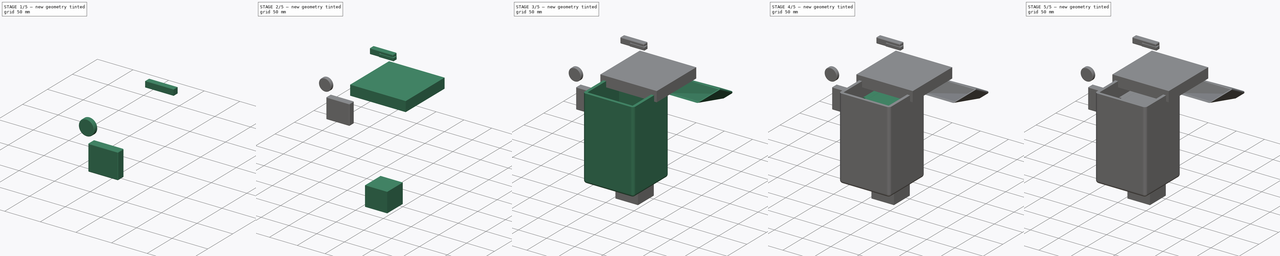
[diagram: build sequence overview — one tinted view per stage of 5, left to right]
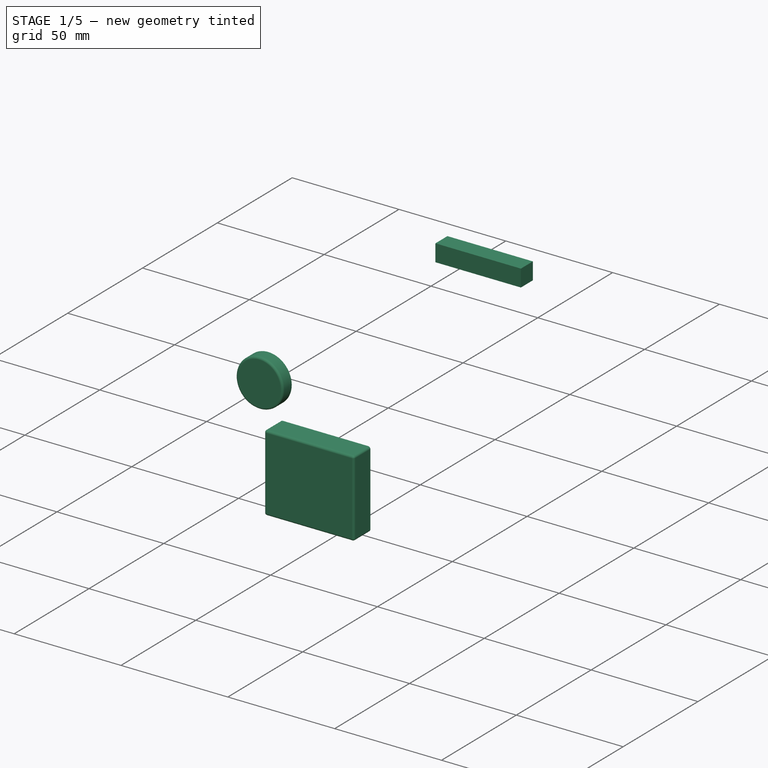
[diagram: stage 1 of 5 — iso view after this stage's code; geometry added in this stage tinted green]
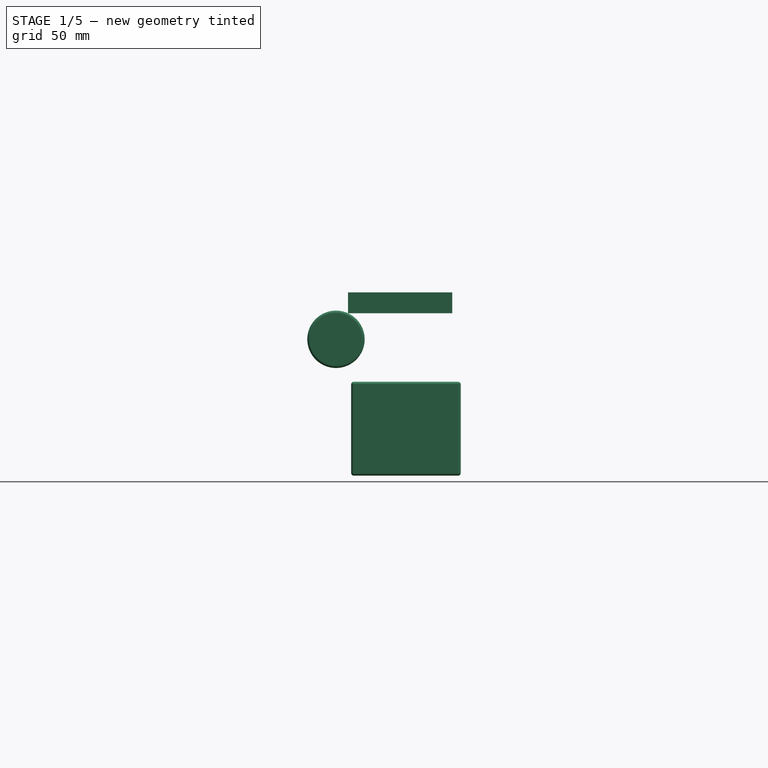
[diagram: stage 1 of 5 — front view after this stage's code; geometry added in this stage tinted green]
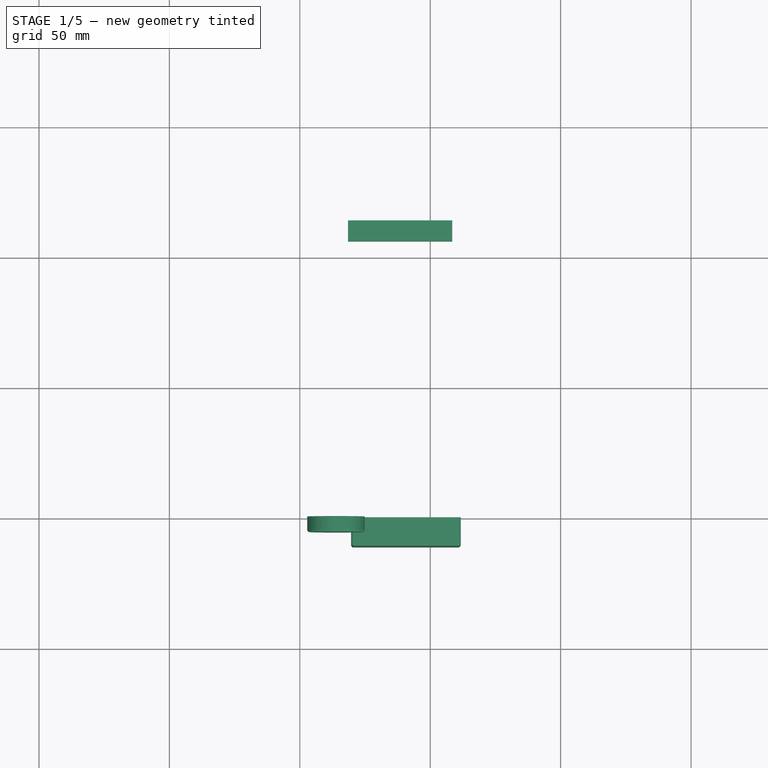
[diagram: stage 1 of 5 — top view after this stage's code; geometry added in this stage tinted green]
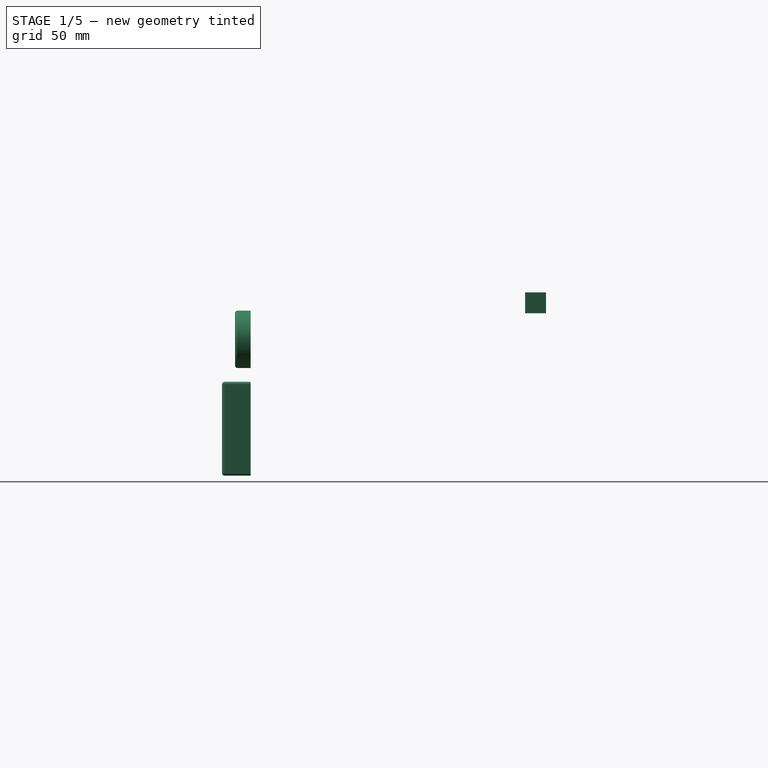
[diagram: stage 1 of 5 — right view after this stage's code; geometry added in this stage tinted green]
FCSTD DOCUMENT  (FreeCAD 0.19R24291 (Git))
Label: โครงเรื่อง3
License: All rights reserved
LicenseURL: http://en.wikipedia.org/wiki/All_rights_reserved
objects: Sketcher::SketchObject×14, PartDesign::Body×13, PartDesign::Pad×12, PartDesign::Thickness×7, PartDesign::Hole×3, PartDesign::Draft×1, PartDesign::AdditiveLoft×1, PartDesign::Pocket×1
note: 77 computed .brp shape members not serialized (recipe doc carries the construction recipe); baked Part::Feature solids carry a one-line shape summary decoded from their .brp

FEATURE [PartDesign::Body] Body009  label="ฐาน"
  Group = -> [Sketch010,Pad008]
  Origin = -> Origin009
  Placement = pos=(0,0,-166) rot=(0,0,1;0rad)
  Tip = -> Pad008
FEATURE [Sketcher::SketchObject] Sketch011
  FullyConstrained = false
  MapMode = 5
  Support = -> [XY_Plane010]
  sketch-geometry (4):
    g0: LineSegment StartX=-131.543 StartY=113.223 StartZ=0 EndX=-91.5434 EndY=113.223 EndZ=0
    g1: LineSegment StartX=-91.5434 StartY=113.223 StartZ=0 EndX=-91.5434 EndY=105.223 EndZ=0
    g2: LineSegment StartX=-91.5434 StartY=105.223 StartZ=0 EndX=-131.543 EndY=105.223 EndZ=0
    g3: LineSegment StartX=-131.543 StartY=105.223 StartZ=0 EndX=-131.543 EndY=113.223 EndZ=0
  constraints (10):
    c: Coincident(g0,g1)
    c: Coincident(g1,g2)
    c: Coincident(g2,g3)
    c: Coincident(g3,g0)
    c: Horizontal(g0)
    c: Horizontal(g2)
    c: Vertical(g1)
    c: Vertical(g3)
    c: DistanceY(g3,g3) = 8
    c: DistanceX(g0,g0) = 40
FEATURE [PartDesign::Pad] Pad009
  Direction = (1,1,1)
  Length = 8
  Length2 = 100
  Profile = -> Sketch011
  Type = 0
FEATURE [PartDesign::Body] Body010  label="LCD"
  Group = -> [Sketch011,Pad009,Thickness004]
  Origin = -> Origin010
  Placement = pos=(88,-49,0) rot=(0,0,1;0rad)
  Tip = -> Thickness004
FEATURE [Sketcher::SketchObject] Sketch012
  FullyConstrained = false
  MapMode = 5
  Placement = pos=(0,0,0) rot=(1,0,0;1.5708rad)
  Support = -> [XZ_Plane011]
  sketch-geometry (1):
    g0: Circle CenterX=-136.135 CenterY=-10 CenterZ=0 NormalX=0 NormalY=0 NormalZ=1 AngleXU=0 Radius=10
  constraints (1):
    c: Radius(g0) = 10
FEATURE [PartDesign::Pad] Pad010
  Direction = (1,1,1)
  Length = 5
  Length2 = 100
  Placement = pos=(0,0,0) rot=(1,0,0;1.5708rad)
  Profile = -> Sketch012
  Type = 0
FEATURE [PartDesign::Thickness] Thickness005
  Base = -> Pad010 [Face2]
  BaseFeature = -> Pad010
  Intersection = false
  Join = 0
  Mode = 0
  SupportTransform = false
  Value = 1
FEATURE [PartDesign::Body] Body011
  Group = -> [Sketch012,Pad010,Thickness005]
  Origin = -> Origin011
  Placement = pos=(112,62,-3) rot=(0,0,1;0rad)
  Tip = -> Thickness005
FEATURE [Sketcher::SketchObject] Sketch013
  FullyConstrained = false
  MapMode = 5
  Placement = pos=(0,0,0) rot=(1,0,0;1.5708rad)
  Support = -> [XZ_Plane012]
  sketch-geometry (4):
    g0: LineSegment StartX=-129.317 StartY=-27.2861 StartZ=0 EndX=-89.3169 EndY=-27.2861 EndZ=0
    g1: LineSegment StartX=-89.3169 StartY=-27.2861 StartZ=0 EndX=-89.3169 EndY=-61.2861 EndZ=0
    g2: LineSegment StartX=-89.3169 StartY=-61.2861 StartZ=0 EndX=-129.317 EndY=-61.2861 EndZ=0
    g3: LineSegment StartX=-129.317 StartY=-61.2861 StartZ=0 EndX=-129.317 EndY=-27.2861 EndZ=0
  constraints (10):
    c: Coincident(g0,g1)
    c: Coincident(g1,g2)
    c: Coincident(g2,g3)
    c: Coincident(g3,g0)
    c: Horizontal(g0)
    c: Horizontal(g2)
    c: Vertical(g1)
    c: Vertical(g3)
    c: DistanceY(g3,g3) = 34
    c: DistanceX(g0,g0) = 40
FEATURE [PartDesign::Pad] Pad011
  Direction = (1,1,1)
  Length = 10
  Length2 = 100
  Placement = pos=(0,0,0) rot=(1,0,0;1.5708rad)
  Profile = -> Sketch013
  Type = 0
FEATURE [PartDesign::Thickness] Thickness006
  Base = -> Pad011 [Face5]
  BaseFeature = -> Pad011
  Intersection = false
  Join = 0
  Mode = 0
  SupportTransform = false
  Value = 1
FEATURE [PartDesign::Body] Body012
  Group = -> [Sketch013,Pad011,Thickness006]
  Origin = -> Origin012
  Placement = pos=(85,66,1) rot=(0,0,1;0rad)
  Tip = -> Thickness006
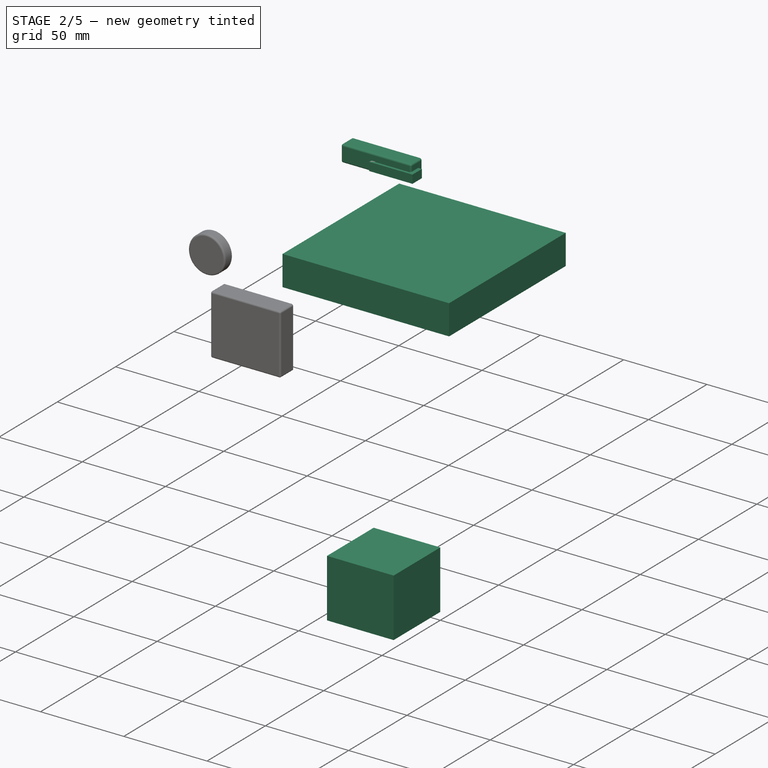
[diagram: stage 2 of 5 — iso view after this stage's code; geometry added in this stage tinted green]
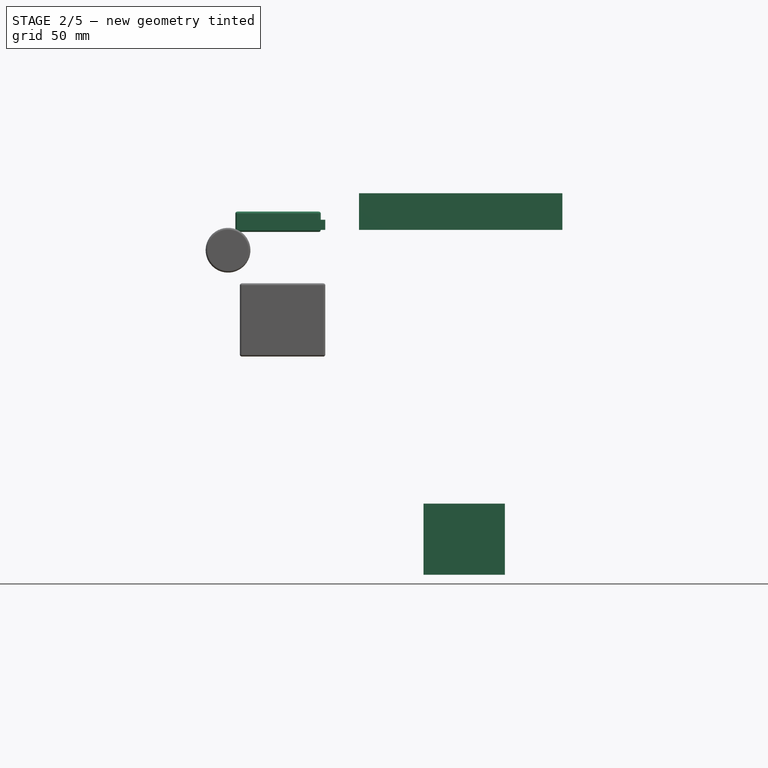
[diagram: stage 2 of 5 — front view after this stage's code; geometry added in this stage tinted green]
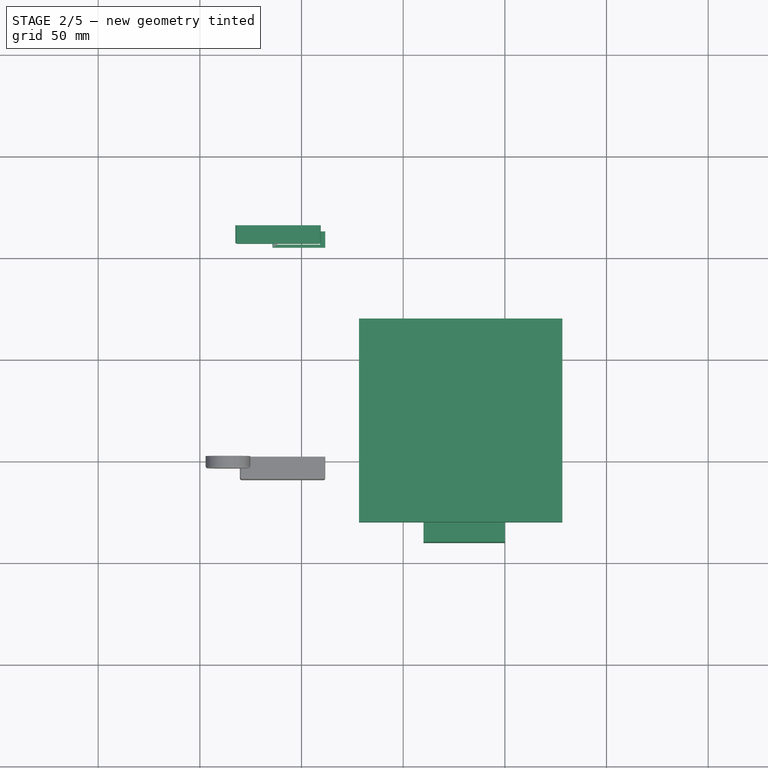
[diagram: stage 2 of 5 — top view after this stage's code; geometry added in this stage tinted green]
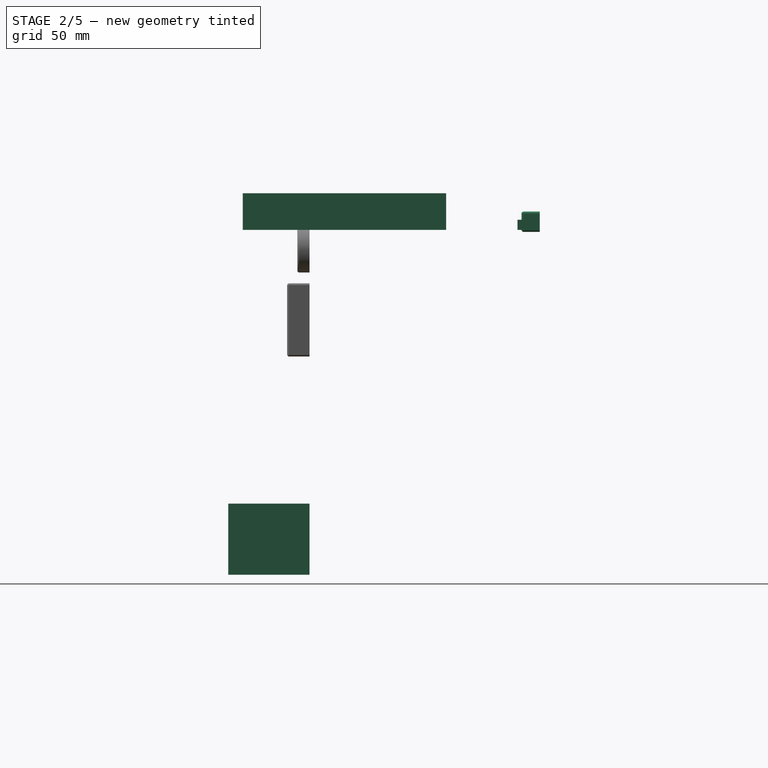
[diagram: stage 2 of 5 — right view after this stage's code; geometry added in this stage tinted green]
FEATURE [PartDesign::Body] Body006  label="กรอบ"
  Group = -> [Sketch007,Pad005,Thickness003]
  Origin = -> Origin006
  Placement = pos=(0,56,4) rot=(0,0,1;0rad)
  Tip = -> Thickness003
FEATURE [Sketcher::SketchObject] Sketch008
  FullyConstrained = false
  MapMode = 5
  Support = -> [XY_Plane007]
  sketch-geometry (8):
    g0: LineSegment StartX=-114.313 StartY=110.283 StartZ=0 EndX=-88.3133 EndY=110.283 EndZ=0
    g1: LineSegment StartX=-88.3133 StartY=110.283 StartZ=0 EndX=-88.3133 EndY=102.283 EndZ=0
    g2: LineSegment StartX=-88.3133 StartY=102.283 StartZ=0 EndX=-114.313 EndY=102.283 EndZ=0
    g3: LineSegment StartX=-114.313 StartY=102.283 StartZ=0 EndX=-114.313 EndY=110.283 EndZ=0
    g4: LineSegment StartX=-110.919 StartY=108.757 StartZ=0 EndX=-90.9192 EndY=108.757 EndZ=0
    g5: LineSegment StartX=-90.9192 StartY=108.757 StartZ=0 EndX=-90.9192 EndY=103.757 EndZ=0
    g6: LineSegment StartX=-90.9192 StartY=103.757 StartZ=0 EndX=-110.919 EndY=103.757 EndZ=0
    g7: LineSegment StartX=-110.919 StartY=103.757 StartZ=0 EndX=-110.919 EndY=108.757 EndZ=0
  constraints (20):
    c: Coincident(g0,g1)
    c: Coincident(g1,g2)
    c: Coincident(g2,g3)
    c: Coincident(g3,g0)
    c: Horizontal(g0)
    c: Horizontal(g2)
    c: Vertical(g1)
    c: Vertical(g3)
    c: DistanceX(g0,g0) = 26
    c: DistanceY(g3,g3) = 8
    c: Coincident(g4,g5)
    c: Coincident(g5,g6)
    c: Coincident(g6,g7)
    c: Coincident(g7,g4)
    c: Horizontal(g4)
    c: Horizontal(g6)
    c: Vertical(g5)
    c: Vertical(g7)
    c: DistanceY(g7,g7) = 5
    c: DistanceX(g4,g4) = 20
FEATURE [PartDesign::Pad] Pad006
  Direction = (1,1,1)
  Length = 5
  Length2 = 100
  Profile = -> Sketch008
  Type = 0
FEATURE [PartDesign::Pocket] Pocket
  BaseFeature = -> Pad006
  Length = 1
  Length2 = 100
  Profile = -> Pad006 [Face5]
  Type = 0
FEATURE [PartDesign::Body] Body007  label="ให้สายออกมา"
  Group = -> [Sketch008,Pad006,Pocket]
  Origin = -> Origin007
  Placement = pos=(78,-143,-97) rot=(0,0,1;0rad)
  Tip = -> Pocket
FEATURE [Sketcher::SketchObject] Sketch009
  FullyConstrained = false
  MapMode = 5
  Placement = pos=(0,0,0) rot=(1,0,0;1.5708rad)
  Support = -> [XZ_Plane008]
  sketch-geometry (4):
    g0: LineSegment StartX=-40 StartY=-134.61 StartZ=0 EndX=0 EndY=-134.61 EndZ=0
    g1: LineSegment StartX=0 StartY=-134.61 StartZ=0 EndX=0 EndY=-169.61 EndZ=0
    g2: LineSegment StartX=0 StartY=-169.61 StartZ=0 EndX=-40 EndY=-169.61 EndZ=0
    g3: LineSegment StartX=-40 StartY=-169.61 StartZ=0 EndX=-40 EndY=-134.61 EndZ=0
  constraints (10):
    c: Coincident(g0,g1)
    c: Coincident(g1,g2)
    c: Coincident(g2,g3)
    c: Coincident(g3,g0)
    c: Horizontal(g0)
    c: Horizontal(g2)
    c: Vertical(g1)
    c: Vertical(g3)
    c: DistanceY(g3,g3) = 35
    c: DistanceX(g2,g2) = 40
FEATURE [PartDesign::Pad] Pad007
  Direction = (1,1,1)
  Length = 40
  Length2 = 100
  Placement = pos=(0,0,0) rot=(1,0,0;1.5708rad)
  Profile = -> Sketch009
  Type = 0
FEATURE [PartDesign::Body] Body008  label="เสาฐาน"
  Group = -> [Sketch009,Pad007]
  Origin = -> Origin008
  Placement = pos=(-2,32,5) rot=(0,0,1;0rad)
  Tip = -> Pad007
FEATURE [Sketcher::SketchObject] Sketch010
  FullyConstrained = false
  MapMode = 5
  Support = -> [XY_Plane009]
  sketch-geometry (4):
    g0: LineSegment StartX=-71.7285 StartY=67.1716 StartZ=0 EndX=28.2715 EndY=67.1716 EndZ=0
    g1: LineSegment StartX=28.2715 StartY=67.1716 StartZ=0 EndX=28.2715 EndY=-32.8284 EndZ=0
    g2: LineSegment StartX=28.2715 StartY=-32.8284 StartZ=0 EndX=-71.7285 EndY=-32.8284 EndZ=0
    g3: LineSegment StartX=-71.7285 StartY=-32.8284 StartZ=0 EndX=-71.7285 EndY=67.1716 EndZ=0
  constraints (10):
    c: Coincident(g0,g1)
    c: Coincident(g1,g2)
    c: Coincident(g2,g3)
    c: Coincident(g3,g0)
    c: Horizontal(g0)
    c: Horizontal(g2)
    c: Vertical(g1)
    c: Vertical(g3)
    c: DistanceY(g3,g3) = 100
    c: DistanceX(g0,g0) = 100
FEATURE [PartDesign::Pad] Pad008
  Direction = (1,1,1)
  Length = 18
  Length2 = 100
  Profile = -> Sketch010
  Type = 0
FEATURE [PartDesign::Thickness] Thickness004
  Base = -> Pad009 [Face1]
  BaseFeature = -> Pad009
  Intersection = false
  Join = 0
  Mode = 0
  SupportTransform = false
  Value = 1
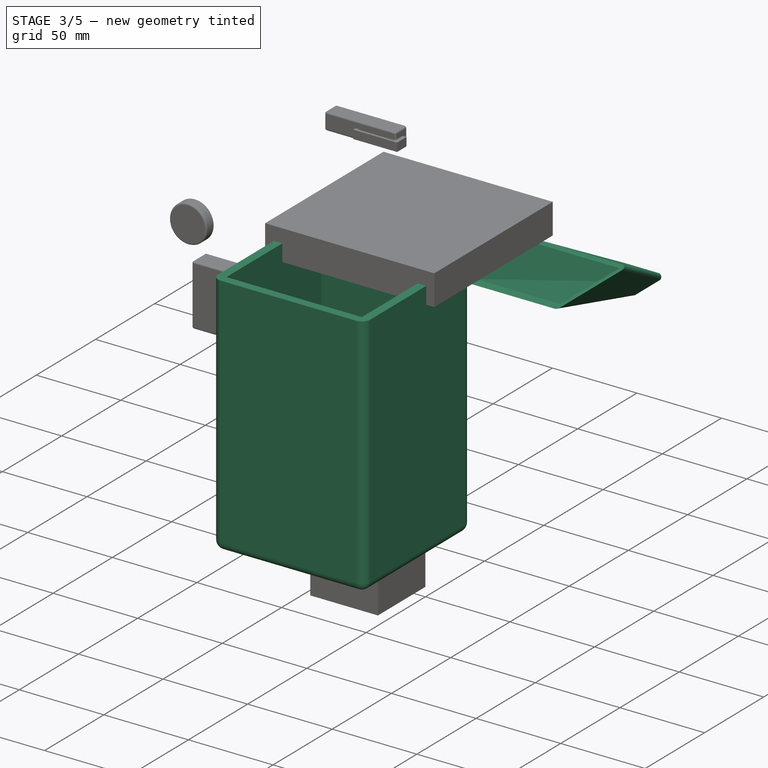
[diagram: stage 3 of 5 — iso view after this stage's code; geometry added in this stage tinted green]
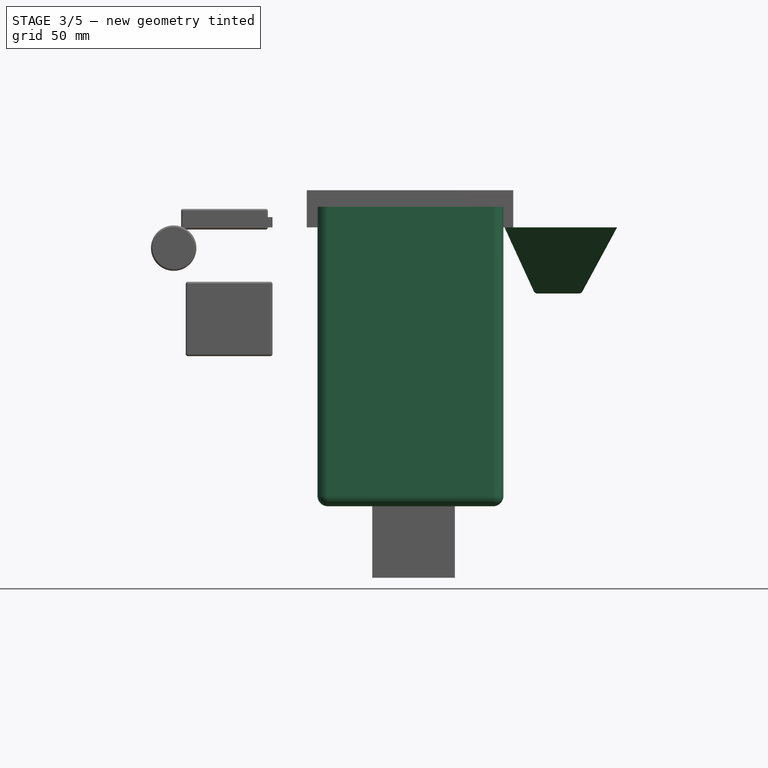
[diagram: stage 3 of 5 — front view after this stage's code; geometry added in this stage tinted green]
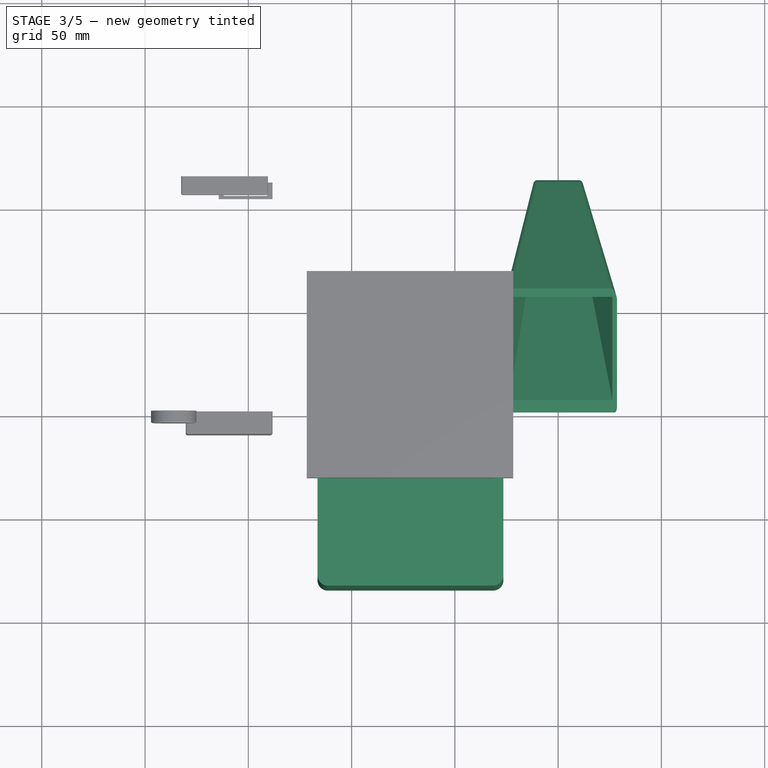
[diagram: stage 3 of 5 — top view after this stage's code; geometry added in this stage tinted green]
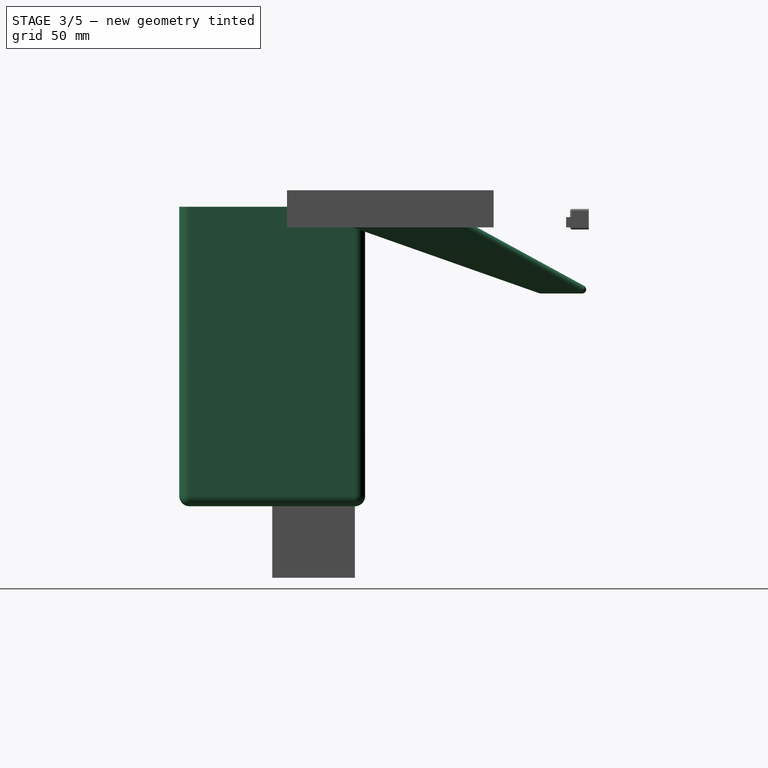
[diagram: stage 3 of 5 — right view after this stage's code; geometry added in this stage tinted green]
FEATURE [PartDesign::Body] Body004  label="ฝาปิด node"
  Group = -> [Sketch004,Pad004]
  Origin = -> Origin004
  Placement = pos=(0,-46,0) rot=(0,0,1;0rad)
  Tip = -> Pad004
FEATURE [Sketcher::SketchObject] Sketch005
  FullyConstrained = false
  MapMode = 5
  Support = -> [XY_Plane005]
  sketch-geometry (4):
    g0: LineSegment StartX=26.2425 StartY=55.0035 StartZ=0 EndX=76.2425 EndY=55.0035 EndZ=0
    g1: LineSegment StartX=76.2425 StartY=55.0035 StartZ=0 EndX=76.2425 EndY=5.00346 EndZ=0
    g2: LineSegment StartX=76.2425 StartY=5.00346 StartZ=0 EndX=26.2425 EndY=5.00346 EndZ=0
    g3: LineSegment StartX=26.2425 StartY=5.00346 StartZ=0 EndX=26.2425 EndY=55.0035 EndZ=0
  constraints (10):
    c: Coincident(g0,g1)
    c: Coincident(g1,g2)
    c: Coincident(g2,g3)
    c: Coincident(g3,g0)
    c: Horizontal(g0)
    c: Horizontal(g2)
    c: Vertical(g1)
    c: Vertical(g3)
    c: DistanceY(g3,g3) = 50
    c: DistanceX(g0,g0) = 50
FEATURE [Sketcher::SketchObject] Sketch006
  AttachmentOffset = pos=(0,20,-30) rot=(0,0,1;0rad)
  FullyConstrained = false
  MapMode = 5
  Placement = pos=(0,20,-30) rot=(0,0,1;0rad)
  Support = -> [XY_Plane005]
  sketch-geometry (5):
    g0: LineSegment StartX=40 StartY=90 StartZ=0 EndX=60 EndY=90 EndZ=0
    g1: LineSegment StartX=60 StartY=90 StartZ=0 EndX=60 EndY=70 EndZ=0
    g2: LineSegment StartX=60 StartY=70 StartZ=0 EndX=40 EndY=70 EndZ=0
    g3: LineSegment StartX=40 StartY=70 StartZ=0 EndX=40 EndY=90 EndZ=0
    g4: Circle CenterX=50 CenterY=80 CenterZ=0 NormalX=0 NormalY=0 NormalZ=1 AngleXU=0 Radius=10
  constraints (11):
    c: Coincident(g0,g1)
    c: Coincident(g1,g2)
    c: Coincident(g2,g3)
    c: Coincident(g3,g0)
    c: Horizontal(g0)
    c: Horizontal(g2)
    c: Vertical(g1)
    c: Vertical(g3)
    c: DistanceY(g3,g3) = 20
    c: DistanceX(g0,g0) = 20
    c: Radius(g4) = 10
FEATURE [PartDesign::AdditiveLoft] AdditiveLoft
  Closed = false
  Profile = -> Sketch005
  Ruled = false
  Sections = -> [Sketch006]
FEATURE [PartDesign::Thickness] Thickness002
  Base = -> AdditiveLoft [Face1]
  BaseFeature = -> AdditiveLoft
  Intersection = false
  Join = 0
  Mode = 0
  SupportTransform = false
  Value = 2
FEATURE [PartDesign::Hole] Hole002
  BaseFeature = -> Thickness002
  Depth = 25
  DepthType = 0
  Diameter = 18
  DrillForDepth = false
  DrillPoint = 1
  DrillPointAngle = 118
  HoleCutCountersinkAngle = 90
  HoleCutCustomValues = false
  HoleCutDepth = 0
  HoleCutDiameter = 6.1
  HoleCutType = 0
  ModelActualThread = false
  Profile = -> Sketch006
  Tapered = false
  TaperedAngle = 90
  ThreadAngle = 0
  ThreadClass = 0
  ThreadCutOffInner = 0
  ThreadCutOffOuter = 0
  ThreadDirection = 0
  ThreadFit = 0
  ThreadPitch = 0
  ThreadSize = 0
  ThreadType = 0
  Threaded = false
FEATURE [PartDesign::Body] Body005  label="ทางเดินอาหาร"
  Group = -> [Sketch005,Sketch006,AdditiveLoft,Thickness002,Hole002]
  Origin = -> Origin005
  Placement = pos=(-75,-7,-57) rot=(0,0,1;0rad)
  Tip = -> Hole002
FEATURE [Sketcher::SketchObject] Sketch007
  FullyConstrained = false
  MapMode = 5
  Placement = pos=(0,0,0) rot=(1,0,0;1.5708rad)
  Support = -> [XZ_Plane006]
  sketch-geometry (4):
    g0: LineSegment StartX=-61.4962 StartY=10 StartZ=0 EndX=18.5038 EndY=10 EndZ=0
    g1: LineSegment StartX=18.5038 StartY=10 StartZ=0 EndX=18.5038 EndY=-130 EndZ=0
    g2: LineSegment StartX=18.5038 StartY=-130 StartZ=0 EndX=-61.4962 EndY=-130 EndZ=0
    g3: LineSegment StartX=-61.4962 StartY=-130 StartZ=0 EndX=-61.4962 EndY=10 EndZ=0
  constraints (10):
    c: Coincident(g0,g1)
    c: Coincident(g1,g2)
    c: Coincident(g2,g3)
    c: Coincident(g3,g0)
    c: Horizontal(g0)
    c: Horizontal(g2)
    c: Vertical(g1)
    c: Vertical(g3)
    c: DistanceX(g2,g2) = 80
    c: DistanceY(g3,g3) = 140
FEATURE [PartDesign::Pad] Pad005
  Direction = (1,1,1)
  Length = 80
  Length2 = 100
  Placement = pos=(0,0,0) rot=(1,0,0;1.5708rad)
  Profile = -> Sketch007
  Type = 0
FEATURE [PartDesign::Thickness] Thickness003
  Base = -> Pad005 [Face1]
  BaseFeature = -> Pad005
  Intersection = false
  Join = 0
  Mode = 0
  SupportTransform = false
  Value = 5
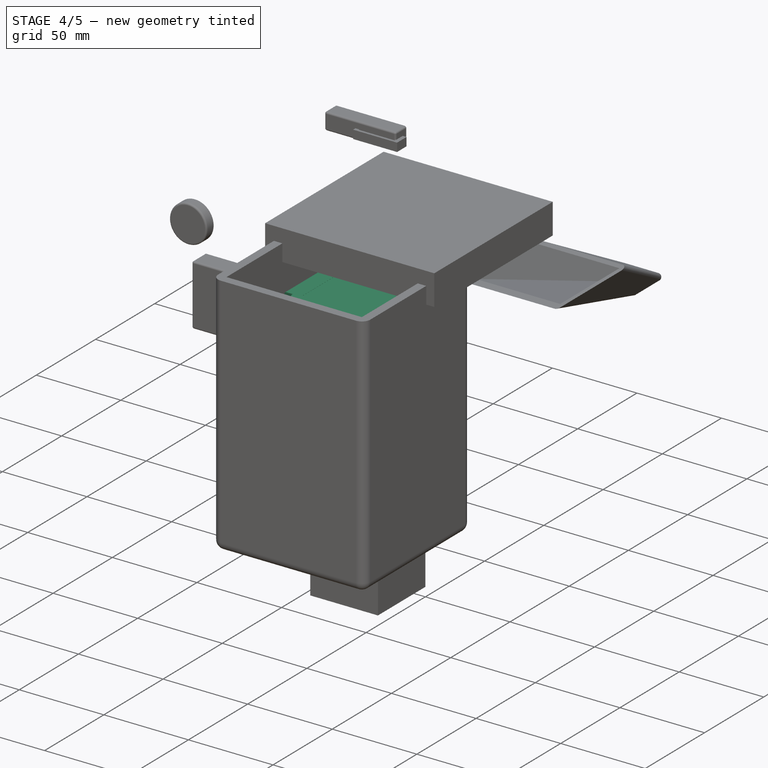
[diagram: stage 4 of 5 — iso view after this stage's code; geometry added in this stage tinted green]
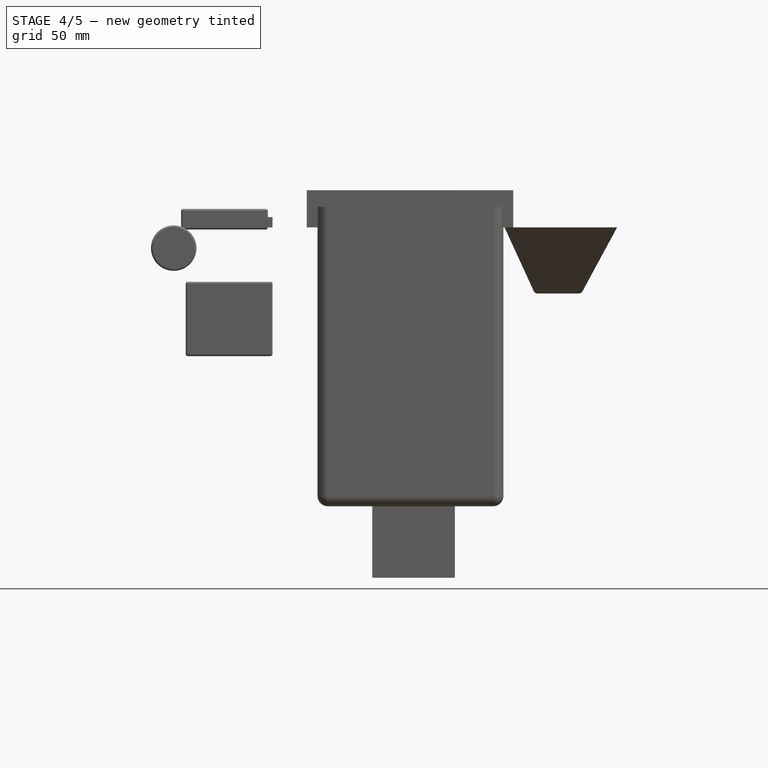
[diagram: stage 4 of 5 — front view after this stage's code; geometry added in this stage tinted green]
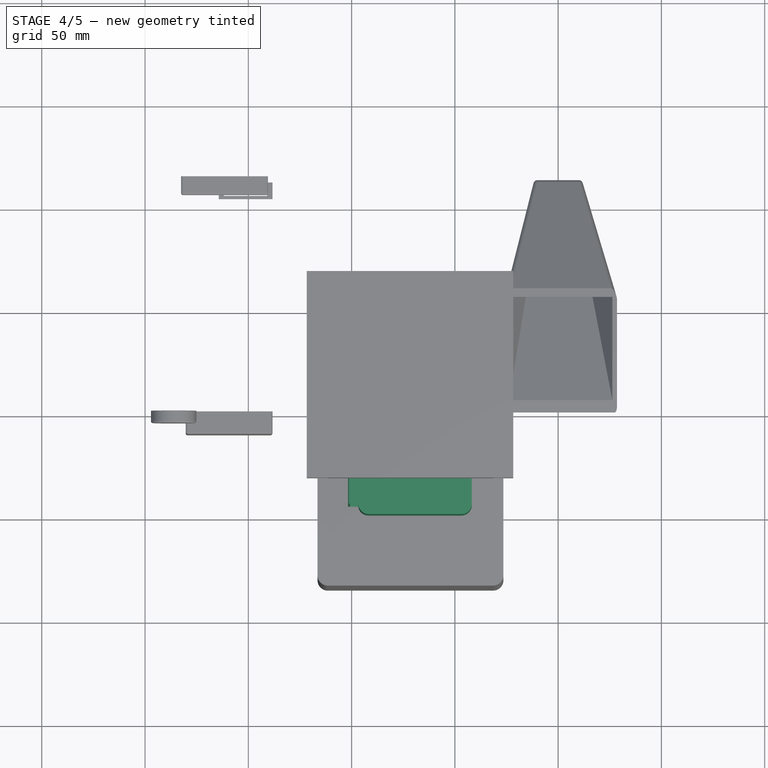
[diagram: stage 4 of 5 — top view after this stage's code; geometry added in this stage tinted green]
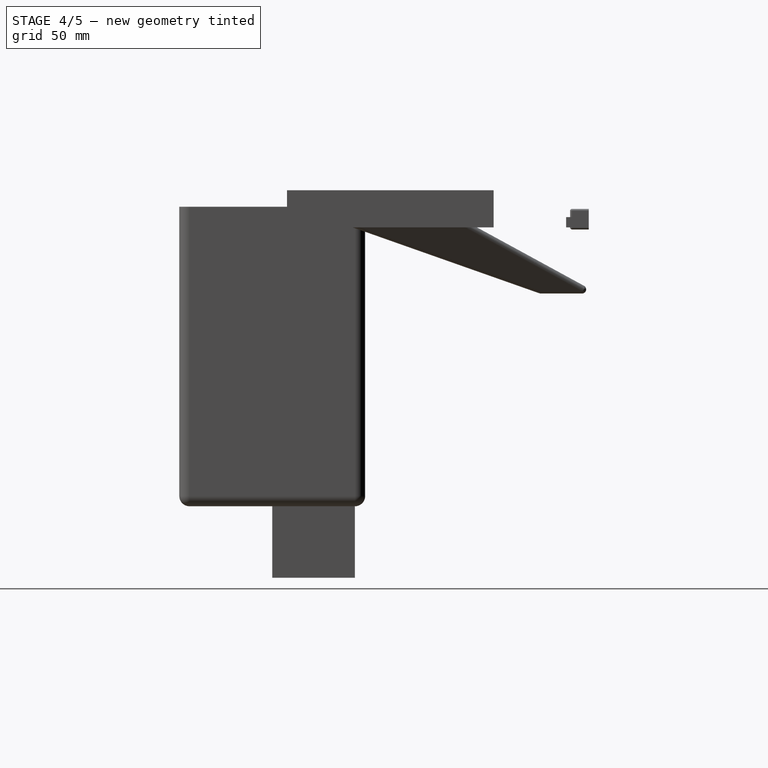
[diagram: stage 4 of 5 — right view after this stage's code; geometry added in this stage tinted green]
FEATURE [PartDesign::Body] Body001  label="ข้อต่อ"
  Group = -> [Sketch001,Pad001,Hole001]
  Origin = -> Origin001
  Placement = pos=(17,-17,-9) rot=(0,0,1;0rad)
  Tip = -> Hole001
FEATURE [Sketcher::SketchObject] Sketch002
  FullyConstrained = false
  MapMode = 5
  Placement = pos=(0,0,0) rot=(1,0,0;1.5708rad)
  Support = -> [XZ_Plane002]
  sketch-geometry (4):
    g0: LineSegment StartX=-41.808 StartY=-8.49835 StartZ=0 EndX=3.19204 EndY=-8.49835 EndZ=0
    g1: LineSegment StartX=3.19204 StartY=-8.49835 StartZ=0 EndX=3.19204 EndY=-53.4983 EndZ=0
    g2: LineSegment StartX=3.19204 StartY=-53.4983 StartZ=0 EndX=-41.808 EndY=-53.4983 EndZ=0
    g3: LineSegment StartX=-41.808 StartY=-53.4983 StartZ=0 EndX=-41.808 EndY=-8.49835 EndZ=0
  constraints (10):
    c: Coincident(g0,g1)
    c: Coincident(g1,g2)
    c: Coincident(g2,g3)
    c: Coincident(g3,g0)
    c: Horizontal(g0)
    c: Horizontal(g2)
    c: Vertical(g1)
    c: Vertical(g3)
    c: DistanceY(g3,g3) = 45
    c: DistanceX(g2,g2) = 45
FEATURE [PartDesign::Pad] Pad002
  Direction = (1,1,1)
  Length = 45
  Length2 = 100
  Placement = pos=(0,0,0) rot=(1,0,0;1.5708rad)
  Profile = -> Sketch002
  Type = 0
FEATURE [PartDesign::Thickness] Thickness
  Base = -> Pad002 [Face1]
  BaseFeature = -> Pad002
  Intersection = false
  Join = 0
  Mode = 0
  SupportTransform = false
  Value = 5
FEATURE [PartDesign::Body] Body002  label="ที่ใส่ใบพัด"
  Group = -> [Sketch002,Pad002,Thickness,Draft]
  Origin = -> Origin002
  Placement = pos=(-4,45,-1) rot=(0,0,1;0rad)
  Tip = -> Draft
FEATURE [Sketcher::SketchObject] Sketch003
  FullyConstrained = false
  MapMode = 5
  Placement = pos=(0,0,0) rot=(1,0,0;1.5708rad)
  Support = -> [XZ_Plane003]
  sketch-geometry (4):
    g0: LineSegment StartX=-50.7467 StartY=-9.55504 StartZ=0 EndX=4.25328 EndY=-9.55504 EndZ=0
    g1: LineSegment StartX=4.25328 StartY=-9.55504 StartZ=0 EndX=4.25328 EndY=-94.555 EndZ=0
    g2: LineSegment StartX=4.25328 StartY=-94.555 StartZ=0 EndX=-50.7467 EndY=-94.555 EndZ=0
    g3: LineSegment StartX=-50.7467 StartY=-94.555 StartZ=0 EndX=-50.7467 EndY=-9.55504 EndZ=0
  constraints (10):
    c: Coincident(g0,g1)
    c: Coincident(g1,g2)
    c: Coincident(g2,g3)
    c: Coincident(g3,g0)
    c: Horizontal(g0)
    c: Horizontal(g2)
    c: Vertical(g1)
    c: Vertical(g3)
    c: DistanceX(g2,g2) = 55
    c: DistanceY(g1,g1) = 85
FEATURE [PartDesign::Pad] Pad003
  Direction = (1,1,1)
  Length = 45
  Length2 = 100
  Placement = pos=(0,0,0) rot=(1,0,0;1.5708rad)
  Profile = -> Sketch003
  Type = 0
FEATURE [PartDesign::Thickness] Thickness001
  Base = -> Pad003 [Face6]
  BaseFeature = -> Pad003
  Intersection = false
  Join = 0
  Mode = 0
  SupportTransform = false
  Value = 1
FEATURE [PartDesign::Body] Body003  label="node"
  Group = -> [Sketch003,Pad003,Thickness001]
  Origin = -> Origin003
  Placement = pos=(0,-6,0) rot=(0,0,1;0rad)
  Tip = -> Thickness001
FEATURE [Sketcher::SketchObject] Sketch004
  FullyConstrained = false
  MapMode = 5
  Placement = pos=(0,0,0) rot=(1,0,0;1.5708rad)
  Support = -> [XZ_Plane004]
  sketch-geometry (8):
    g0: LineSegment StartX=-51.8988 StartY=-9.02195 StartZ=0 EndX=5.1012 EndY=-9.02195 EndZ=0
    g1: LineSegment StartX=5.1012 StartY=-9.02195 StartZ=0 EndX=5.1012 EndY=-96.022 EndZ=0
    g2: LineSegment StartX=5.1012 StartY=-96.022 StartZ=0 EndX=-51.8988 EndY=-96.022 EndZ=0
    g3: LineSegment StartX=-51.8988 StartY=-96.022 StartZ=0 EndX=-51.8988 EndY=-9.02195 EndZ=0
    g4: Circle CenterX=-46.092 CenterY=-14.3782 CenterZ=0 NormalX=0 NormalY=0 NormalZ=1 AngleXU=0 Radius=3
    g5: Circle CenterX=-46.5033 CenterY=-90 CenterZ=0 NormalX=0 NormalY=0 NormalZ=1 AngleXU=0 Radius=3
    g6: Circle CenterX=0 CenterY=-14.3407 CenterZ=0 NormalX=0 NormalY=0 NormalZ=1 AngleXU=0 Radius=3
    g7: Circle CenterX=0 CenterY=-90 CenterZ=0 NormalX=0 NormalY=0 NormalZ=1 AngleXU=0 Radius=3
  constraints (15):
    c: Coincident(g0,g1)
    c: Coincident(g1,g2)
    c: Coincident(g2,g3)
    c: Coincident(g3,g0)
    c: Horizontal(g0)
    c: Horizontal(g2)
    c: Vertical(g1)
    c: Vertical(g3)
    c: DistanceX(g0,g0) = 57
    c: DistanceY(g3,g3) = 87
    c: Radius(g4) = 3
    c: Equal(g4,g5) = 3
    c: Equal(g4,g6) = 3
    c: PointOnObject(g6,g-2)
    c: Equal(g4,g7) = 3
FEATURE [PartDesign::Pad] Pad004
  Direction = (1,1,1)
  Length = 5
  Length2 = 100
  Placement = pos=(0,0,0) rot=(1,0,0;1.5708rad)
  Profile = -> Sketch004
  Type = 0
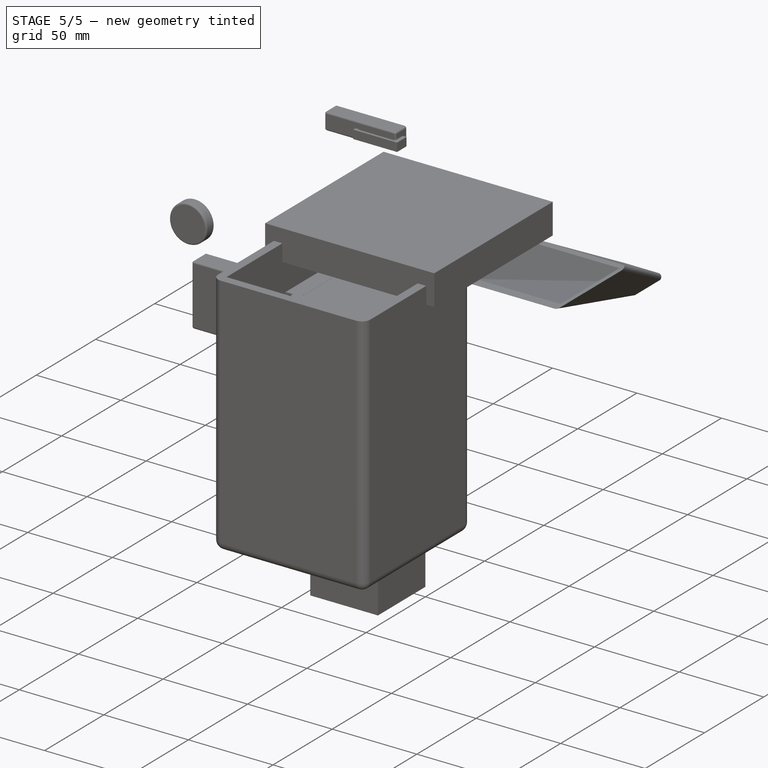
[diagram: stage 5 of 5 — iso view after this stage's code; geometry added in this stage tinted green]
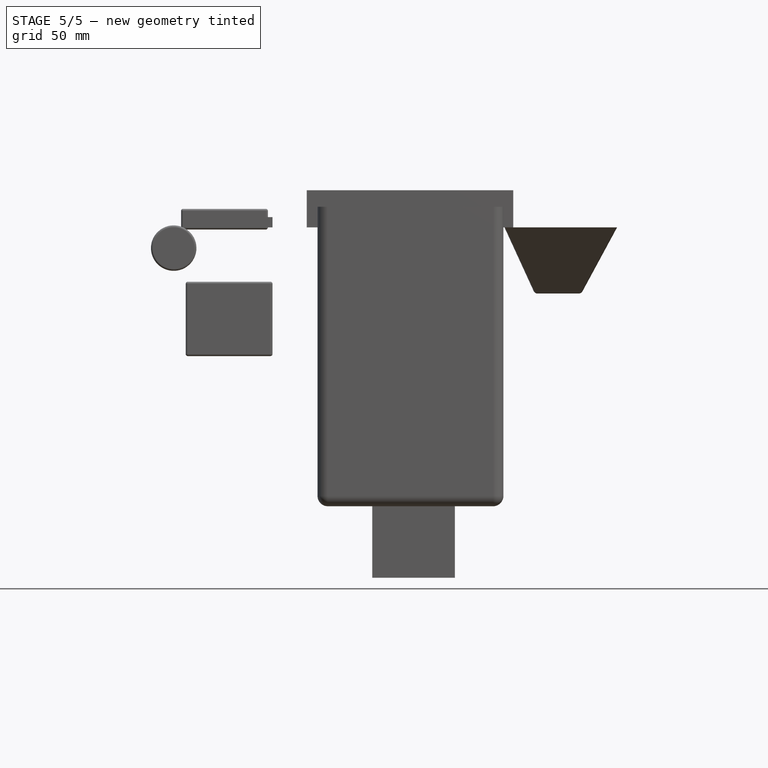
[diagram: stage 5 of 5 — front view after this stage's code; geometry added in this stage tinted green]
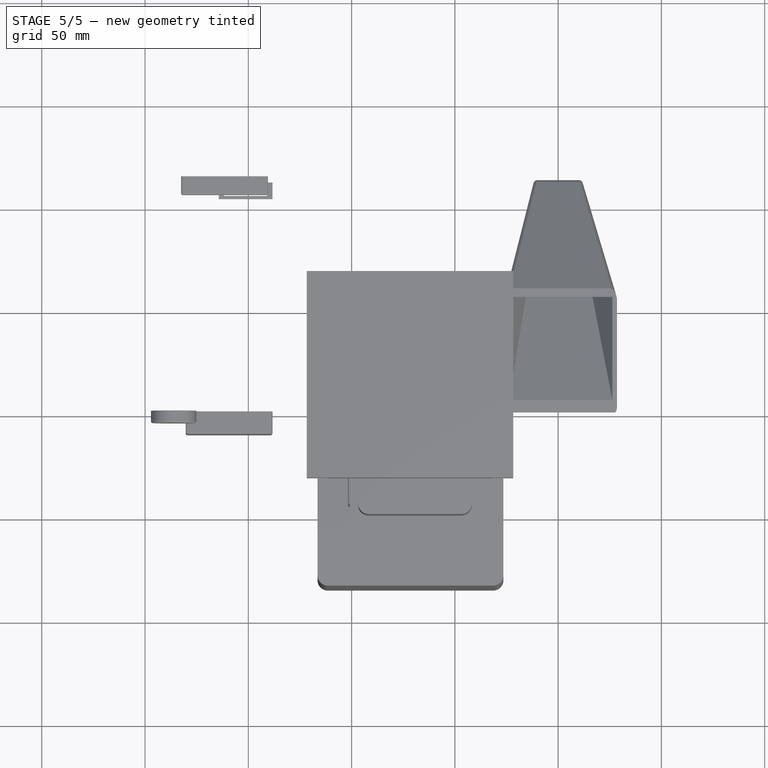
[diagram: stage 5 of 5 — top view after this stage's code; geometry added in this stage tinted green]
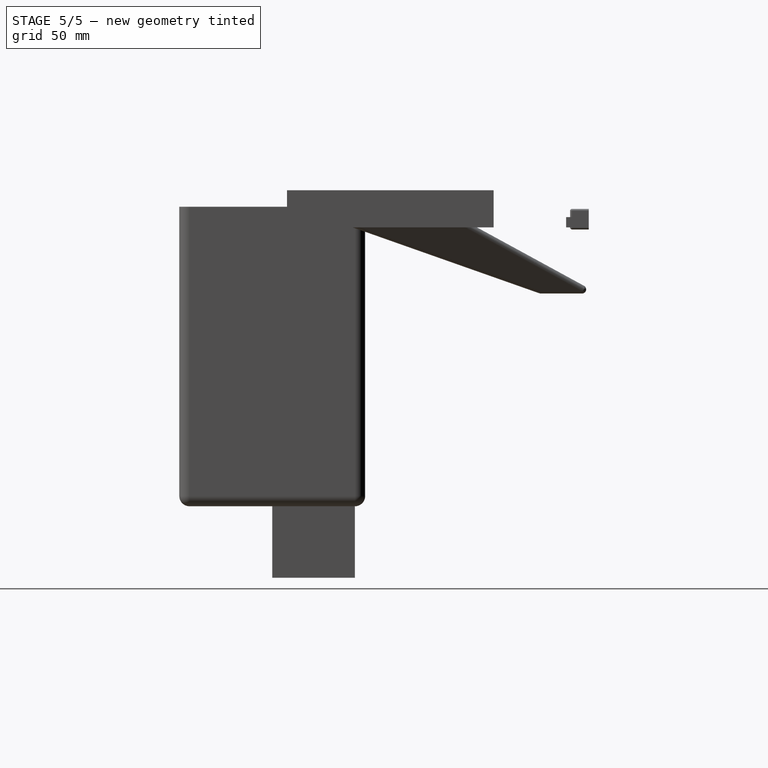
[diagram: stage 5 of 5 — right view after this stage's code; geometry added in this stage tinted green]
FEATURE [Sketcher::SketchObject] Sketch
  FullyConstrained = false
  MapMode = 5
  Support = -> [XY_Plane]
  sketch-geometry (1):
    g0: Circle CenterX=-23.7195 CenterY=23.1196 CenterZ=0 NormalX=0 NormalY=0 NormalZ=1 AngleXU=0 Radius=26
  constraints (1):
    c: Radius(g0) = 26
FEATURE [PartDesign::Pad] Pad
  Direction = (1,1,1)
  Length = 16
  Length2 = 100
  Profile = -> Sketch
  Type = 0
FEATURE [PartDesign::Hole] Hole
  BaseFeature = -> Pad
  Depth = 25
  DepthType = 0
  Diameter = 44
  DrillForDepth = false
  DrillPoint = 1
  DrillPointAngle = 118
  HoleCutCountersinkAngle = 90
  HoleCutCustomValues = false
  HoleCutDepth = 0
  HoleCutDiameter = 0
  HoleCutType = 0
  ModelActualThread = false
  Profile = -> Pad [Face3]
  Tapered = false
  TaperedAngle = 90
  ThreadAngle = 0
  ThreadClass = 0
  ThreadCutOffInner = 0
  ThreadCutOffOuter = 0
  ThreadDirection = 0
  ThreadFit = 0
  ThreadPitch = 0
  ThreadSize = 0
  ThreadType = 0
  Threaded = false
FEATURE [PartDesign::Body] Body  label="ปากกระบอกอาหาร"
  Group = -> [Sketch,Pad,Hole]
  Origin = -> Origin
  Tip = -> Hole
FEATURE [Sketcher::SketchObject] Sketch001
  FullyConstrained = false
  MapMode = 5
  Support = -> [XY_Plane001]
  sketch-geometry (1):
    g0: Circle CenterX=-40 CenterY=40 CenterZ=0 NormalX=0 NormalY=0 NormalZ=1 AngleXU=0 Radius=24
  constraints (1):
    c: Radius(g0) = 24
FEATURE [PartDesign::Pad] Pad001
  Direction = (1,1,1)
  Length = 10
  Length2 = 100
  Profile = -> Sketch001
  Type = 0
FEATURE [PartDesign::Hole] Hole001
  BaseFeature = -> Pad001
  Depth = 8
  DepthType = 0
  Diameter = 41
  DrillForDepth = false
  DrillPoint = 1
  DrillPointAngle = 140
  HoleCutCountersinkAngle = 90
  HoleCutCustomValues = false
  HoleCutDepth = 0.4
  HoleCutDiameter = 42.2
  HoleCutType = 0
  ModelActualThread = false
  Profile = -> Pad001 [Face3]
  Tapered = false
  TaperedAngle = 90
  ThreadAngle = 0
  ThreadClass = 0
  ThreadCutOffInner = 0
  ThreadCutOffOuter = 0
  ThreadDirection = 0
  ThreadFit = 0
  ThreadPitch = 0
  ThreadSize = 0
  ThreadType = 0
  Threaded = false
FEATURE [PartDesign::Draft] Draft
  Angle = 1.5
  Base = -> Thickness [Face23]
  BaseFeature = -> Thickness
  SupportTransform = false
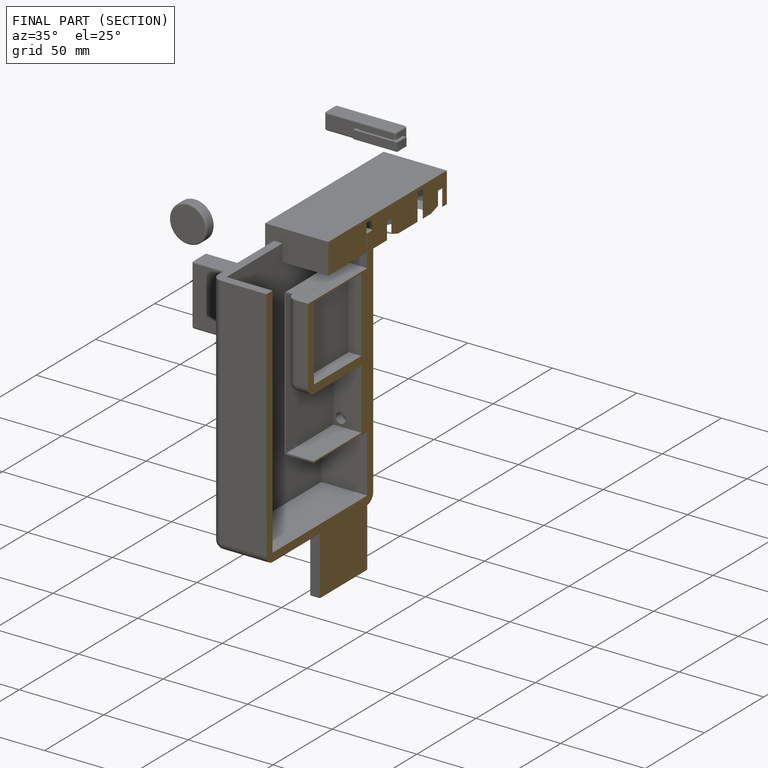
[diagram: finished part — half-section view (interior)]
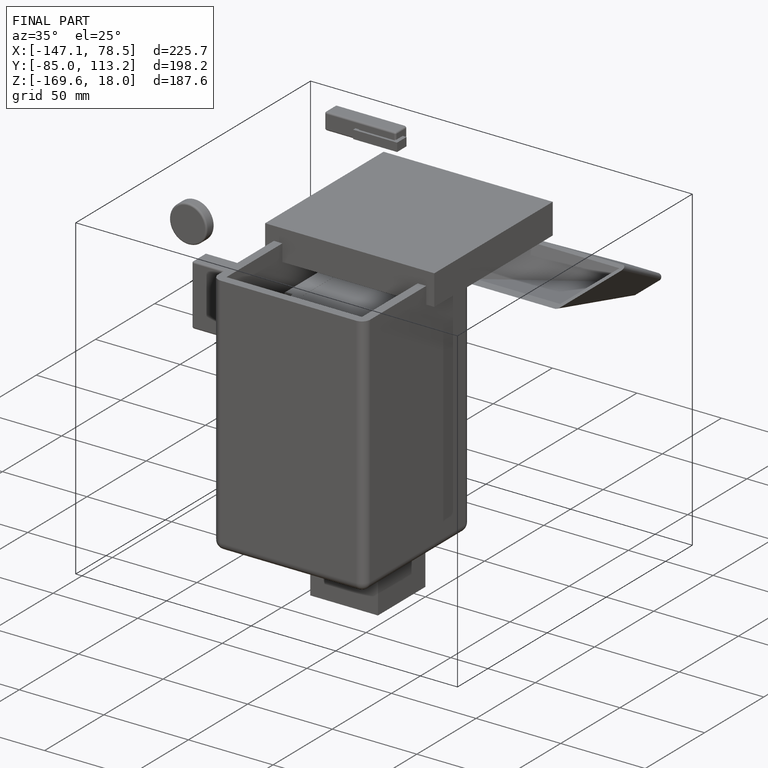
[diagram: finished part — iso view with bounding-box wireframe]
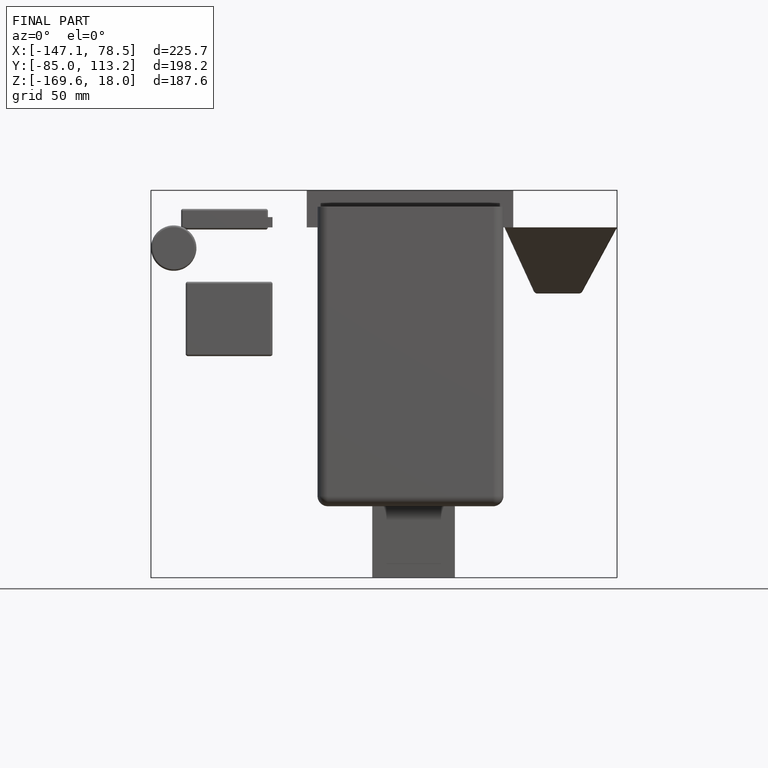
[diagram: finished part — front view with bounding-box wireframe]
